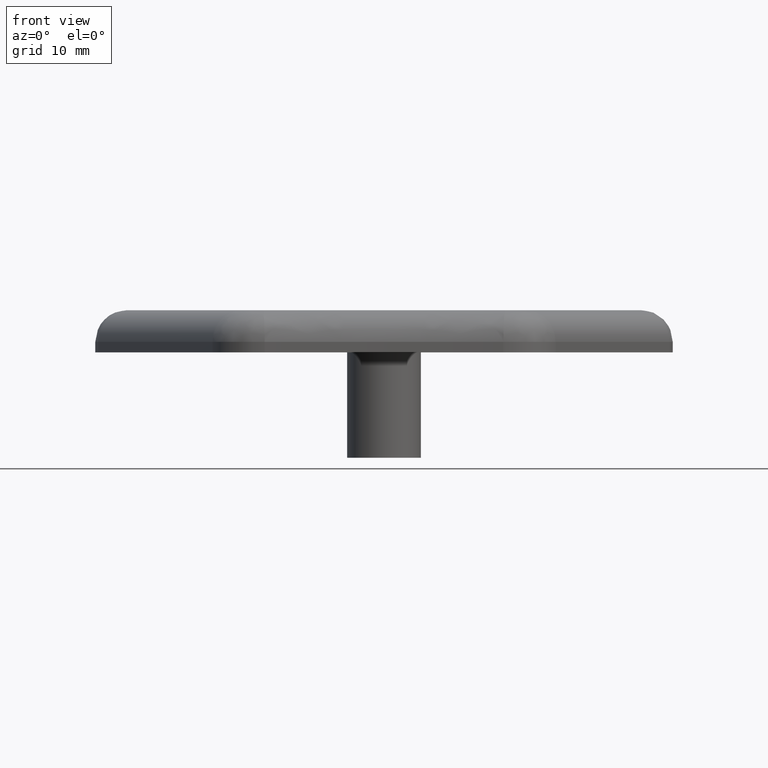
[diagram: clean part render]
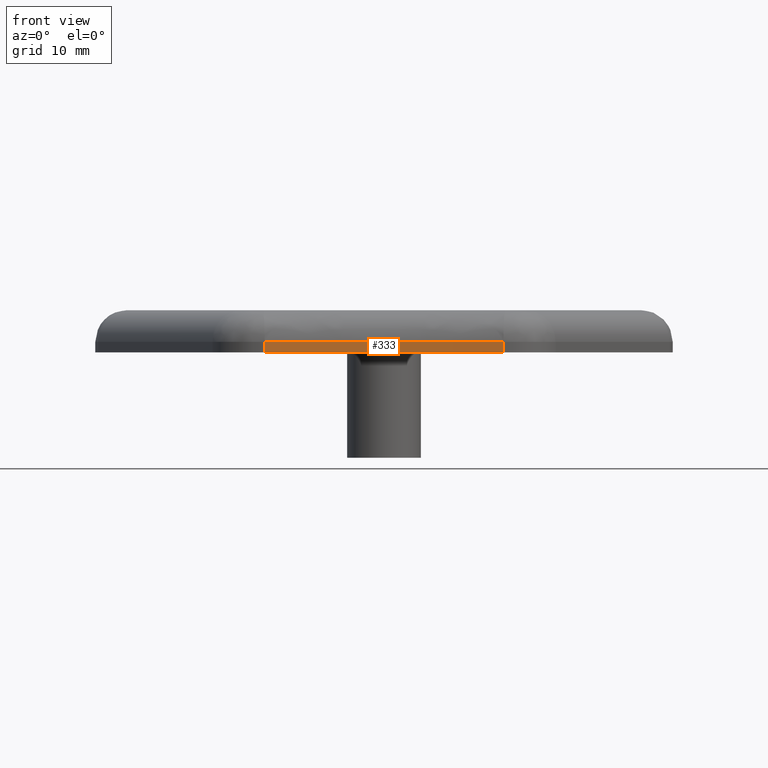
[diagram: same view with one face highlighted and labeled with its STEP entity id]
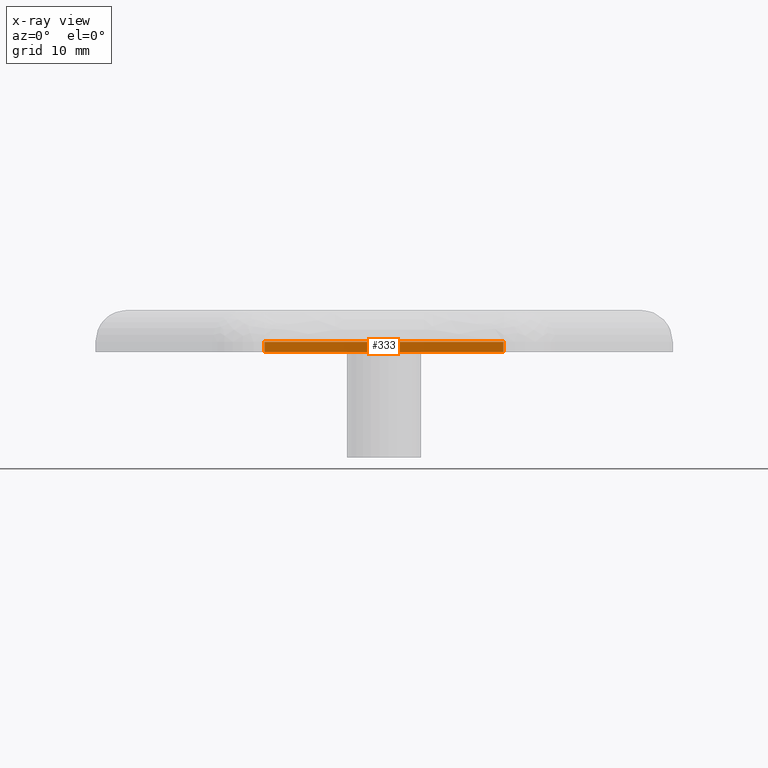
[diagram: x-ray of the same camera — body ghosted, the highlighted face saturated]
A machine part, front view. The second image highlights one B-rep face of the part: STEP entity #333.
The next image is the same camera in x-ray: the body ghosted, the highlighted face saturated — about 0% of this face is hidden behind the body in this view.
In plain terms, the highlighted cylindrical surface (partial cylindrical patch) has radius 210.06 mm, axis along (0, 0, -1).
Its self-contained STEP definition (entity closure, byte-faithful):
#26=CARTESIAN_POINT('',(11.332728443000832,-20.245401084893473,0.0));
#27=VERTEX_POINT('',#26);
#35=CARTESIAN_POINT('',(-11.332728443000939,-20.245401084893473,0.0));
#36=VERTEX_POINT('',#35);
#37=CARTESIAN_POINT('',(-3.907985E-014,-230.000000000000060,0.0));
#38=DIRECTION('',(0.0,0.0,-1.000000000000000));
#39=DIRECTION('',(0.071407991971395,0.997447190924218,0.0));
#40=AXIS2_PLACEMENT_3D('',#37,#38,#39);
#41=CIRCLE('',#40,210.060521040960960);
#42=EDGE_CURVE('',#36,#27,#41,.T.);
#289=CARTESIAN_POINT('',(-11.332728443000917,-20.245401084893473,1.0));
#290=VERTEX_POINT('',#289);
#291=CARTESIAN_POINT('',(-11.332728443000939,-20.245401084893473,0.0));
#292=DIRECTION('',(0.0,0.0,1.0));
#293=VECTOR('',#292,1.0);
#294=LINE('',#291,#293);
#295=EDGE_CURVE('',#36,#290,#294,.T.);
#309=CARTESIAN_POINT('',(-3.552714E-014,-230.0,0.0));
#310=DIRECTION('',(0.0,0.0,-1.0));
#311=DIRECTION('',(-0.071407991971396,0.997447190924218,0.0));
#312=AXIS2_PLACEMENT_3D('',#309,#310,#311);
#313=CYLINDRICAL_SURFACE('',#312,210.060521040960960);
#314=ORIENTED_EDGE('',*,*,#42,.T.);
#315=CARTESIAN_POINT('',(11.332728443000832,-20.245401084893466,1.0));
#316=VERTEX_POINT('',#315);
#317=CARTESIAN_POINT('',(11.332728443000832,-20.245401084893473,0.0));
#318=DIRECTION('',(0.0,0.0,1.0));
#319=VECTOR('',#318,1.0);
#320=LINE('',#317,#319);
#321=EDGE_CURVE('',#27,#316,#320,.T.);
#322=ORIENTED_EDGE('',*,*,#321,.T.);
#323=CARTESIAN_POINT('',(-3.907985E-014,-230.000000000000060,1.000000000000000));
#324=DIRECTION('',(0.0,0.0,-1.000000000000000));
#325=DIRECTION('',(0.071407991971395,0.997447190924218,0.0));
#326=AXIS2_PLACEMENT_3D('',#323,#324,#325);
#327=CIRCLE('',#326,210.060521040960960);
#328=EDGE_CURVE('',#290,#316,#327,.T.);
#329=ORIENTED_EDGE('',*,*,#328,.F.);
#330=ORIENTED_EDGE('',*,*,#295,.F.);
#331=EDGE_LOOP('',(#314,#322,#329,#330));
#332=FACE_OUTER_BOUND('',#331,.T.);
#333=ADVANCED_FACE('',(#332),#313,.F.);